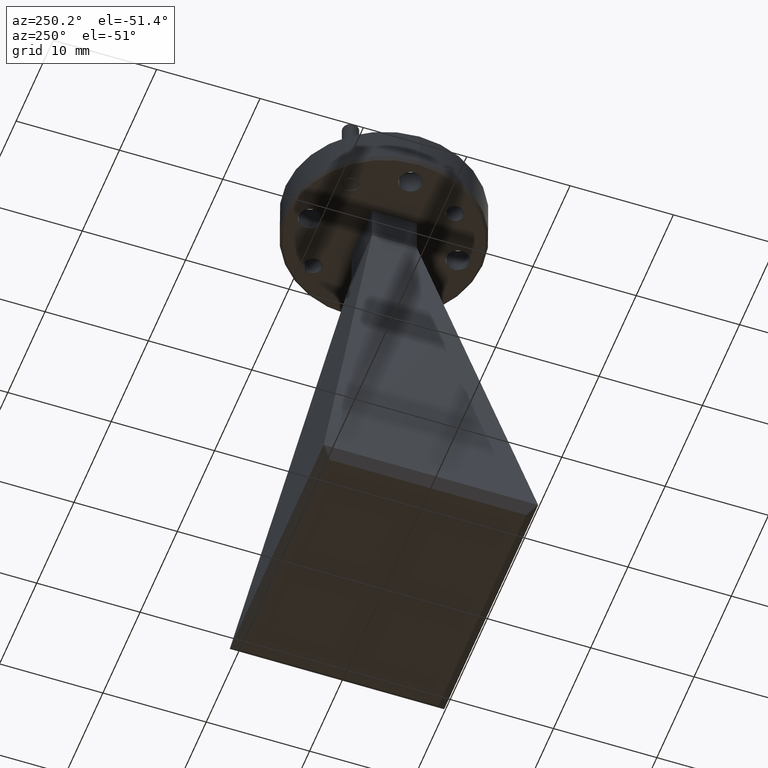
[diagram: clean part render]
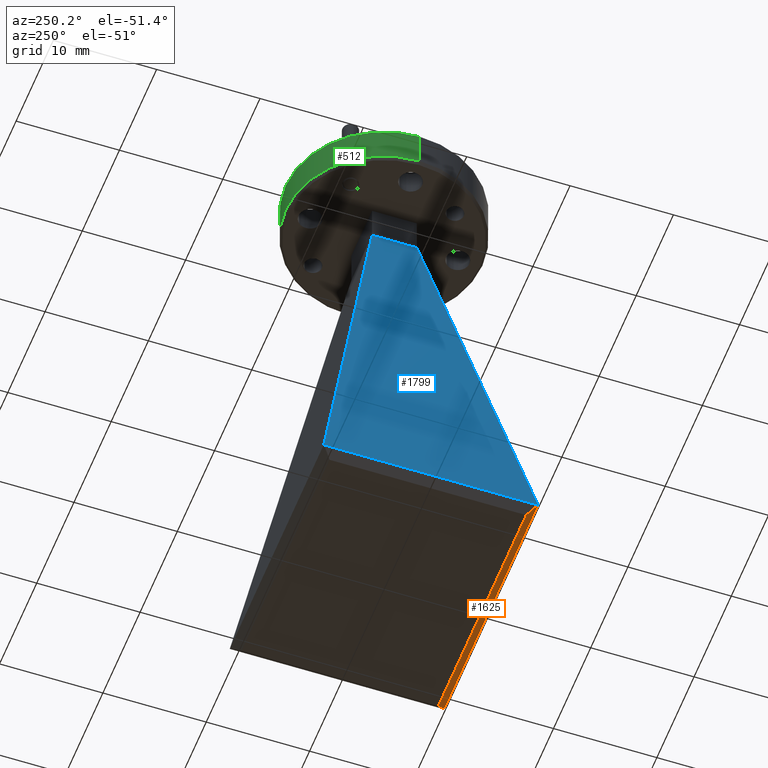
[diagram: same view with three faces highlighted in distinct colors, each labeled with its STEP entity id]
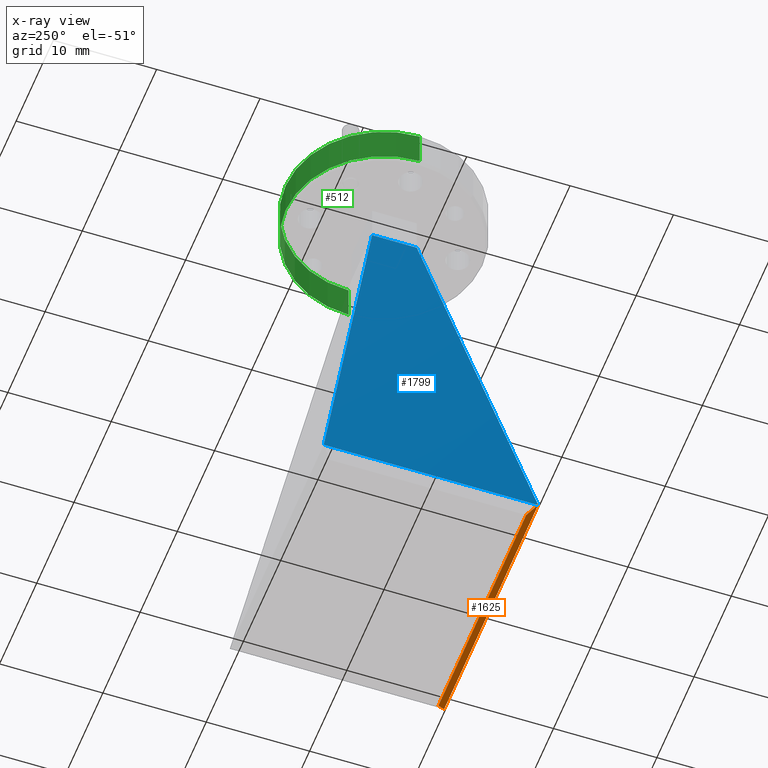
[diagram: x-ray of the same camera — body ghosted, the three highlighted faces saturated]
A machine part, auxiliary view with three faces highlighted in distinct colors.
The next image is the same camera in x-ray (body ghosted, the three faces saturated) — at least one of them is partly hidden behind the body in this view.
Their STEP definitions:

[orange] entity #1625 — the highlighted planar face has unit normal (-0, 0.7071, 0.7071).
#92 = LINE ( 'NONE', #658, #2357 ) ;
#104 = ORIENTED_EDGE ( 'NONE', *, *, #2183, .F. ) ;
#189 = CARTESIAN_POINT ( 'NONE',  ( 0.4644999999999998019, -0.3744999999999997775, -2.131279999999999841 ) ) ;
#195 = LINE ( 'NONE', #1691, #932 ) ;
#211 = DIRECTION ( 'NONE',  ( 0.1505900360686870387, -0.6990431463925675937, 0.6990431463925604882 ) ) ;
#228 = EDGE_CURVE ( 'NONE', #2264, #1484, #982, .T. ) ;
#256 = ORIENTED_EDGE ( 'NONE', *, *, #450, .F. ) ;
#276 = DIRECTION ( 'NONE',  ( 0.1505900360686869000, 0.6990431463925675937, -0.6990431463925605993 ) ) ;
#288 = LINE ( 'NONE', #2311, #379 ) ;
#323 = CARTESIAN_POINT ( 'NONE',  ( 5.528680272263172408E-17, -0.4084003507992483573, -2.097379649200751928 ) ) ;
#379 = VECTOR ( 'NONE', #1707, 39.37007874015748854 ) ;
#394 = EDGE_CURVE ( 'NONE', #737, #2514, #288, .T. ) ;
#450 = EDGE_CURVE ( 'NONE', #1484, #1287, #546, .T. ) ;
#492 = FACE_OUTER_BOUND ( 'NONE', #1207, .T. ) ;
#546 = LINE ( 'NONE', #964, #1851 ) ;
#658 = CARTESIAN_POINT ( 'NONE',  ( 5.528680272263172408E-17, -0.4084003507992483573, -2.097379649200751484 ) ) ;
#737 = VERTEX_POINT ( 'NONE', #1914 ) ;
#776 = CARTESIAN_POINT ( 'NONE',  ( 0.3081249169394162934, -1.286078611171582509, -1.219701388828425825 ) ) ;
#878 = DIRECTION ( 'NONE',  ( -9.572389700152903068E-17, 0.7071067811865440200, 0.7071067811865511255 ) ) ;
#888 = AXIS2_PLACEMENT_3D ( 'NONE', #323, #878, #1084 ) ;
#932 = VECTOR ( 'NONE', #211, 39.37007874015748143 ) ;
#964 = CARTESIAN_POINT ( 'NONE',  ( 0.3322669005328314773, -0.2422669005328312586, -2.263513099467167056 ) ) ;
#982 = LINE ( 'NONE', #776, #2559 ) ;
#1084 = DIRECTION ( 'NONE',  ( 1.000000000000000000, 1.353740333827682706E-16, 0.000000000000000000 ) ) ;
#1116 = CARTESIAN_POINT ( 'NONE',  ( 5.069757550184669813E-17, -0.3744999999999998330, -2.131279999999999841 ) ) ;
#1207 = EDGE_LOOP ( 'NONE', ( #1403, #2155, #256, #1221, #1471, #104 ) ) ;
#1221 = ORIENTED_EDGE ( 'NONE', *, *, #228, .F. ) ;
#1276 = PLANE ( 'NONE',  #888 ) ;
#1287 = VERTEX_POINT ( 'NONE', #189 ) ;
#1291 = EDGE_CURVE ( 'NONE', #1287, #2514, #1709, .T. ) ;
#1295 = EDGE_CURVE ( 'NONE', #1487, #2264, #92, .T. ) ;
#1350 = DIRECTION ( 'NONE',  ( -0.5773502691896270633, 0.5773502691896278405, -0.5773502691896222894 ) ) ;
#1403 = ORIENTED_EDGE ( 'NONE', *, *, #394, .T. ) ;
#1471 = ORIENTED_EDGE ( 'NONE', *, *, #1295, .F. ) ;
#1484 = VERTEX_POINT ( 'NONE', #2055 ) ;
#1487 = VERTEX_POINT ( 'NONE', #2278 ) ;
#1507 = DIRECTION ( 'NONE',  ( 1.000000000000000000, 1.353740333827682459E-16, 3.032786659938673092E-33 ) ) ;
#1625 = ADVANCED_FACE ( 'NONE', ( #492 ), #1276, .F. ) ;
#1691 = CARTESIAN_POINT ( 'NONE',  ( -0.3081249169394161824, -1.286078611171582953, -1.219701388828426492 ) ) ;
#1707 = DIRECTION ( 'NONE',  ( 0.5773502691896268413, 0.5773502691896280625, -0.5773502691896221783 ) ) ;
#1709 = LINE ( 'NONE', #1116, #2440 ) ;
#1851 = VECTOR ( 'NONE', #1350, 39.37007874015748854 ) ;
#1914 = CARTESIAN_POINT ( 'NONE',  ( -0.4974103505288033356, -0.4074103505288035332, -2.098369649471196752 ) ) ;
#2055 = CARTESIAN_POINT ( 'NONE',  ( 0.4974103505288033911, -0.4074103505288034222, -2.098369649471196752 ) ) ;
#2088 = DIRECTION ( 'NONE',  ( -1.000000000000000000, -1.353740333827682706E-16, 0.000000000000000000 ) ) ;
#2155 = ORIENTED_EDGE ( 'NONE', *, *, #1291, .F. ) ;
#2183 = EDGE_CURVE ( 'NONE', #737, #1487, #195, .T. ) ;
#2186 = CARTESIAN_POINT ( 'NONE',  ( 0.4971970816094190004, -0.4084003507992484683, -2.097379649200751928 ) ) ;
#2252 = CARTESIAN_POINT ( 'NONE',  ( -0.4644999999999998019, -0.3744999999999999440, -2.131279999999999841 ) ) ;
#2264 = VERTEX_POINT ( 'NONE', #2186 ) ;
#2278 = CARTESIAN_POINT ( 'NONE',  ( -0.4971970816094188339, -0.4084003507992485793, -2.097379649200751928 ) ) ;
#2311 = CARTESIAN_POINT ( 'NONE',  ( -0.3616069003525346770, -0.2716069003525345416, -2.234173099647464245 ) ) ;
#2357 = VECTOR ( 'NONE', #1507, 39.37007874015748143 ) ;
#2440 = VECTOR ( 'NONE', #2088, 39.37007874015748143 ) ;
#2514 = VERTEX_POINT ( 'NONE', #2252 ) ;
#2559 = VECTOR ( 'NONE', #276, 39.37007874015748143 ) ;

[blue] entity #1799 — the highlighted planar face has unit normal (-0.9776, -0, 0.2106).
#81 = DIRECTION ( 'NONE',  ( 8.238383575585836130E-17, -1.000000000000000000, -3.012382580993968680E-33 ) ) ;
#136 = ORIENTED_EDGE ( 'NONE', *, *, #1705, .T. ) ;
#167 = LINE ( 'NONE', #790, #389 ) ;
#195 = LINE ( 'NONE', #1691, #932 ) ;
#211 = DIRECTION ( 'NONE',  ( 0.1505900360686870387, -0.6990431463925675937, 0.6990431463925604882 ) ) ;
#255 = EDGE_CURVE ( 'NONE', #2592, #1487, #2048, .T. ) ;
#267 = CARTESIAN_POINT ( 'NONE',  ( -0.4974103505288033356, 0.4074103505288031446, -2.098369649471196752 ) ) ;
#303 = LINE ( 'NONE', #902, #1971 ) ;
#335 = EDGE_LOOP ( 'NONE', ( #500, #1157, #957, #2302, #136, #1513 ) ) ;
#358 = DIRECTION ( 'NONE',  ( -0.2074080050761602234, 0.1732343160268562388, -0.9627937428032210532 ) ) ;
#372 = EDGE_CURVE ( 'NONE', #1238, #2571, #303, .T. ) ;
#389 = VECTOR ( 'NONE', #358, 39.37007874015748143 ) ;
#400 = FACE_OUTER_BOUND ( 'NONE', #335, .T. ) ;
#436 = CARTESIAN_POINT ( 'NONE',  ( -0.1100000000000000006, -0.08499999999999999223, -0.2999999999999999889 ) ) ;
#438 = CARTESIAN_POINT ( 'NONE',  ( -0.4971970816094187229, 0.4084003507992483017, -2.097379649200751484 ) ) ;
#500 = ORIENTED_EDGE ( 'NONE', *, *, #1535, .T. ) ;
#548 = CARTESIAN_POINT ( 'NONE',  ( -0.04336082201107323286, -3.572230838799265019E-18, 0.009340922351234319174 ) ) ;
#737 = VERTEX_POINT ( 'NONE', #1914 ) ;
#790 = CARTESIAN_POINT ( 'NONE',  ( -0.1099999999999999867, 0.08499999999999999223, -0.2999999999999999889 ) ) ;
#872 = CARTESIAN_POINT ( 'NONE',  ( -0.1100000000000000283, 0.08499999999999999223, -0.3000000000000000444 ) ) ;
#901 = VERTEX_POINT ( 'NONE', #872 ) ;
#902 = CARTESIAN_POINT ( 'NONE',  ( -0.3081249169394157938, 1.286078611171582953, -1.219701388828423827 ) ) ;
#919 = CARTESIAN_POINT ( 'NONE',  ( -0.4974103505288033356, -4.097857262122885948E-17, -2.098369649471196752 ) ) ;
#932 = VECTOR ( 'NONE', #211, 39.37007874015748143 ) ;
#957 = ORIENTED_EDGE ( 'NONE', *, *, #255, .F. ) ;
#1008 = CARTESIAN_POINT ( 'NONE',  ( -0.1100000000000000699, -3.572230838799265019E-18, -0.3000000000000000999 ) ) ;
#1157 = ORIENTED_EDGE ( 'NONE', *, *, #2183, .T. ) ;
#1183 = AXIS2_PLACEMENT_3D ( 'NONE', #548, #1777, #1195 ) ;
#1195 = DIRECTION ( 'NONE',  ( 0.2105920220226428219, 0.000000000000000000, 0.9775740382500011094 ) ) ;
#1238 = VERTEX_POINT ( 'NONE', #438 ) ;
#1263 = VECTOR ( 'NONE', #81, 39.37007874015748143 ) ;
#1342 = VECTOR ( 'NONE', #1829, 39.37007874015748143 ) ;
#1394 = CARTESIAN_POINT ( 'NONE',  ( -0.1100000000000000561, -0.08499999999999997835, -0.3000000000000000444 ) ) ;
#1487 = VERTEX_POINT ( 'NONE', #2278 ) ;
#1513 = ORIENTED_EDGE ( 'NONE', *, *, #372, .T. ) ;
#1535 = EDGE_CURVE ( 'NONE', #2571, #737, #1932, .T. ) ;
#1691 = CARTESIAN_POINT ( 'NONE',  ( -0.3081249169394161824, -1.286078611171582953, -1.219701388828426492 ) ) ;
#1705 = EDGE_CURVE ( 'NONE', #901, #1238, #167, .T. ) ;
#1719 = DIRECTION ( 'NONE',  ( -0.1505900360686870942, -0.6990431463925669275, -0.6990431463925612654 ) ) ;
#1777 = DIRECTION ( 'NONE',  ( -0.9775740382500012204, -8.053629900637930016E-17, 0.2105920220226428496 ) ) ;
#1799 = ADVANCED_FACE ( 'NONE', ( #400 ), #1985, .T. ) ;
#1829 = DIRECTION ( 'NONE',  ( -0.2074080050761602234, -0.1732343160268563220, -0.9627937428032210532 ) ) ;
#1903 = VECTOR ( 'NONE', #2025, 39.37007874015748143 ) ;
#1914 = CARTESIAN_POINT ( 'NONE',  ( -0.4974103505288033356, -0.4074103505288035332, -2.098369649471196752 ) ) ;
#1932 = LINE ( 'NONE', #919, #1263 ) ;
#1960 = EDGE_CURVE ( 'NONE', #2592, #901, #2205, .T. ) ;
#1971 = VECTOR ( 'NONE', #1719, 39.37007874015748143 ) ;
#1985 = PLANE ( 'NONE',  #1183 ) ;
#2025 = DIRECTION ( 'NONE',  ( -7.873019504537576124E-17, 1.000000000000000000, 1.696030205397357615E-17 ) ) ;
#2048 = LINE ( 'NONE', #436, #1342 ) ;
#2183 = EDGE_CURVE ( 'NONE', #737, #1487, #195, .T. ) ;
#2205 = LINE ( 'NONE', #1008, #1903 ) ;
#2278 = CARTESIAN_POINT ( 'NONE',  ( -0.4971970816094188339, -0.4084003507992485793, -2.097379649200751928 ) ) ;
#2302 = ORIENTED_EDGE ( 'NONE', *, *, #1960, .T. ) ;
#2571 = VERTEX_POINT ( 'NONE', #267 ) ;
#2592 = VERTEX_POINT ( 'NONE', #1394 ) ;

[green] entity #512 — the highlighted cylindrical surface (partial cylindrical patch) has radius 9.525 mm, axis along (0, 0, 1).
#94 = CARTESIAN_POINT ( 'NONE',  ( 0.000000000000000000, 0.000000000000000000, -0.1500000000000000500 ) ) ;
#184 = EDGE_CURVE ( 'NONE', #1621, #997, #1548, .T. ) ;
#233 = CARTESIAN_POINT ( 'NONE',  ( -0.3750000000000000555, 4.592425496802575451E-17, -0.1500000000000000500 ) ) ;
#257 = AXIS2_PLACEMENT_3D ( 'NONE', #725, #1334, #2137 ) ;
#297 = AXIS2_PLACEMENT_3D ( 'NONE', #94, #1920, #1712 ) ;
#331 = CARTESIAN_POINT ( 'NONE',  ( 0.3750000000000000555, 0.000000000000000000, -0.1600000000000000033 ) ) ;
#512 = ADVANCED_FACE ( 'NONE', ( #2402 ), #1561, .T. ) ;
#571 = ORIENTED_EDGE ( 'NONE', *, *, #844, .T. ) ;
#641 = VERTEX_POINT ( 'NONE', #1666 ) ;
#725 = CARTESIAN_POINT ( 'NONE',  ( 0.000000000000000000, 0.000000000000000000, -0.009999999999999415606 ) ) ;
#787 = AXIS2_PLACEMENT_3D ( 'NONE', #2156, #1393, #2202 ) ;
#789 = CIRCLE ( 'NONE', #257, 0.3750000000000000555 ) ;
#828 = EDGE_LOOP ( 'NONE', ( #1049, #2054, #571, #1545 ) ) ;
#844 = EDGE_CURVE ( 'NONE', #641, #2401, #789, .T. ) ;
#997 = VERTEX_POINT ( 'NONE', #233 ) ;
#1049 = ORIENTED_EDGE ( 'NONE', *, *, #184, .T. ) ;
#1232 = CARTESIAN_POINT ( 'NONE',  ( -0.3750000000000000555, 4.592425496802575451E-17, -0.1600000000000000033 ) ) ;
#1265 = VECTOR ( 'NONE', #2329, 39.37007874015748143 ) ;
#1334 = DIRECTION ( 'NONE',  ( 0.000000000000000000, 0.000000000000000000, -1.000000000000000000 ) ) ;
#1385 = VECTOR ( 'NONE', #1859, 39.37007874015748143 ) ;
#1393 = DIRECTION ( 'NONE',  ( 0.000000000000000000, 0.000000000000000000, 1.000000000000000000 ) ) ;
#1545 = ORIENTED_EDGE ( 'NONE', *, *, #2017, .F. ) ;
#1548 = CIRCLE ( 'NONE', #297, 0.3750000000000000555 ) ;
#1561 = CYLINDRICAL_SURFACE ( 'NONE', #787, 0.3750000000000000555 ) ;
#1621 = VERTEX_POINT ( 'NONE', #2108 ) ;
#1666 = CARTESIAN_POINT ( 'NONE',  ( -0.3750000000000000555, 4.592425496802575451E-17, -0.009999999999999415606 ) ) ;
#1712 = DIRECTION ( 'NONE',  ( 1.000000000000000000, 0.000000000000000000, 0.000000000000000000 ) ) ;
#1859 = DIRECTION ( 'NONE',  ( 0.000000000000000000, 0.000000000000000000, 1.000000000000000000 ) ) ;
#1920 = DIRECTION ( 'NONE',  ( -0.000000000000000000, -0.000000000000000000, 1.000000000000000000 ) ) ;
#1957 = EDGE_CURVE ( 'NONE', #997, #641, #2407, .T. ) ;
#2017 = EDGE_CURVE ( 'NONE', #1621, #2401, #2483, .T. ) ;
#2054 = ORIENTED_EDGE ( 'NONE', *, *, #1957, .T. ) ;
#2108 = CARTESIAN_POINT ( 'NONE',  ( 0.3750000000000000555, 0.000000000000000000, -0.1500000000000000500 ) ) ;
#2137 = DIRECTION ( 'NONE',  ( 1.000000000000000000, 0.000000000000000000, 0.000000000000000000 ) ) ;
#2156 = CARTESIAN_POINT ( 'NONE',  ( 0.000000000000000000, 0.000000000000000000, -0.1600000000000000033 ) ) ;
#2202 = DIRECTION ( 'NONE',  ( 1.000000000000000000, 0.000000000000000000, 0.000000000000000000 ) ) ;
#2206 = CARTESIAN_POINT ( 'NONE',  ( 0.3750000000000000555, 0.000000000000000000, -0.009999999999999415606 ) ) ;
#2329 = DIRECTION ( 'NONE',  ( 0.000000000000000000, 0.000000000000000000, 1.000000000000000000 ) ) ;
#2401 = VERTEX_POINT ( 'NONE', #2206 ) ;
#2402 = FACE_OUTER_BOUND ( 'NONE', #828, .T. ) ;
#2407 = LINE ( 'NONE', #1232, #1385 ) ;
#2483 = LINE ( 'NONE', #331, #1265 ) ;